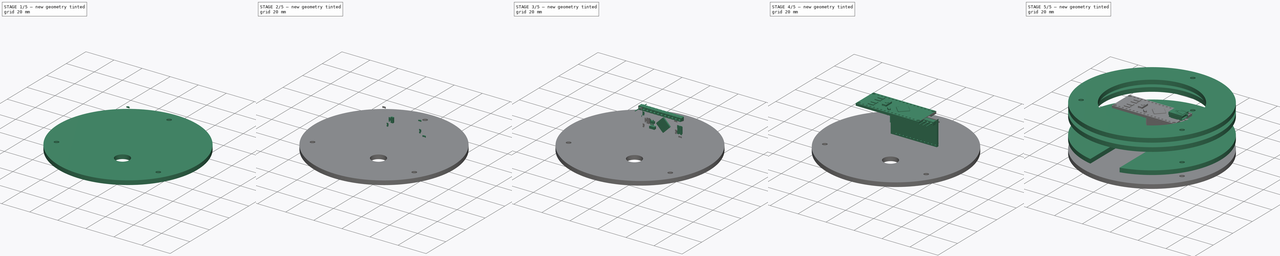
[diagram: build sequence overview — one tinted view per stage of 5, left to right]
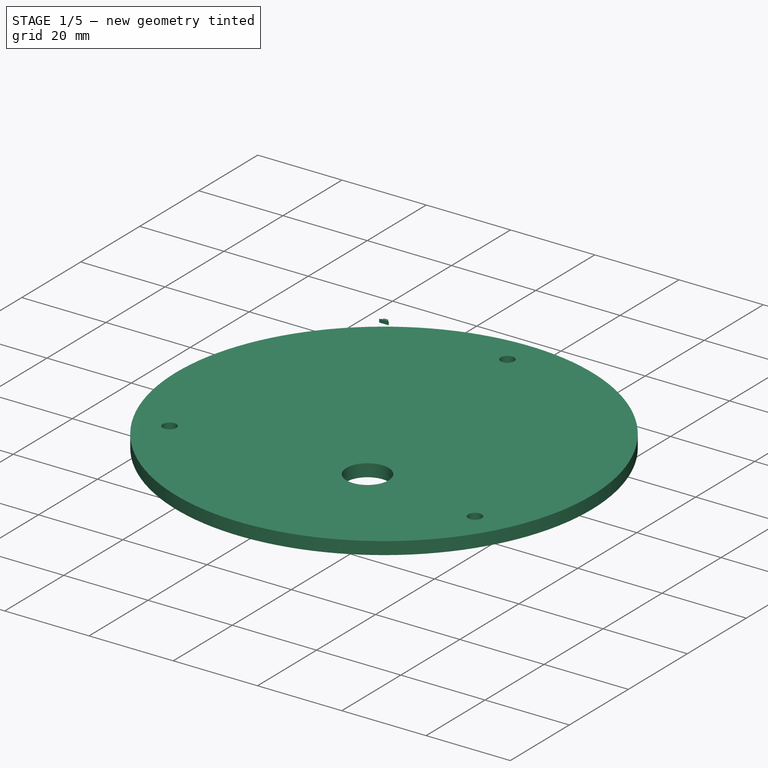
[diagram: stage 1 of 5 — iso view after this stage's code; geometry added in this stage tinted green]
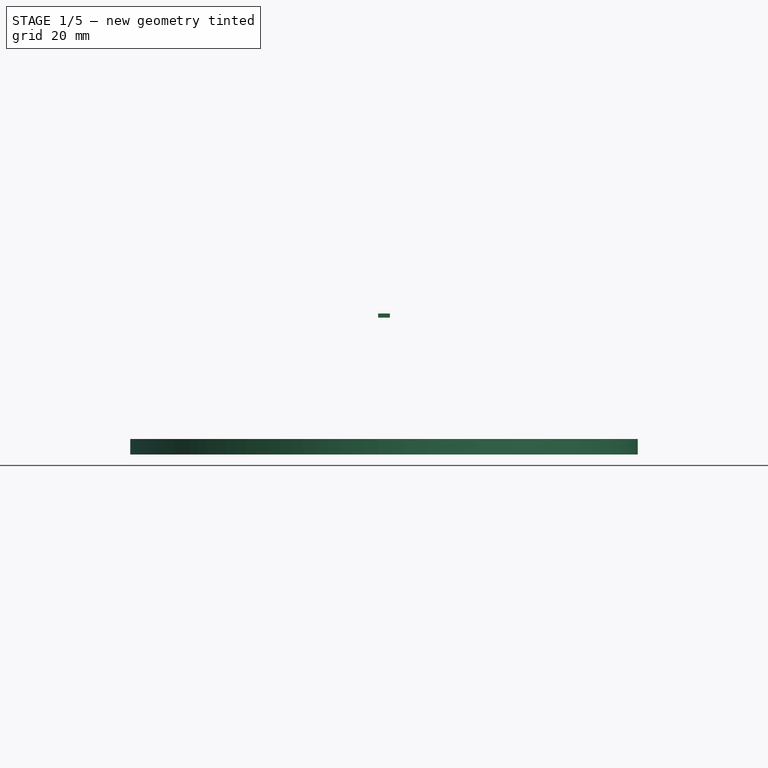
[diagram: stage 1 of 5 — front view after this stage's code; geometry added in this stage tinted green]
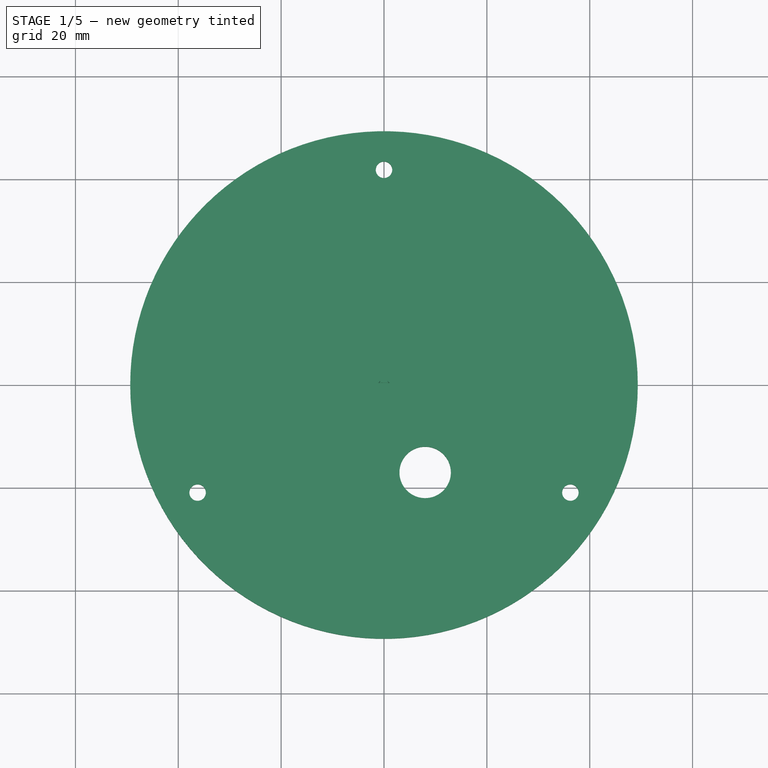
[diagram: stage 1 of 5 — top view after this stage's code; geometry added in this stage tinted green]
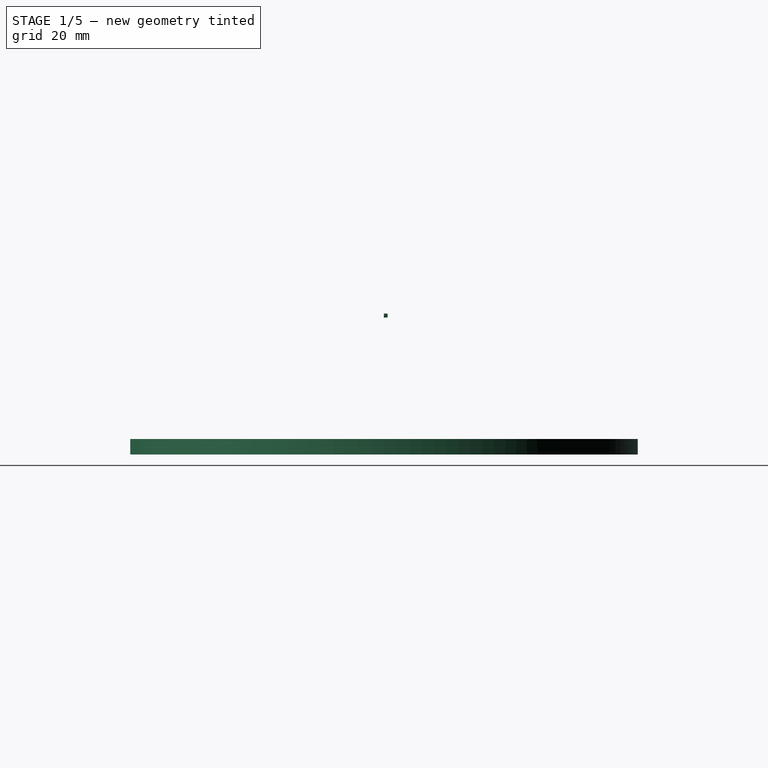
[diagram: stage 1 of 5 — right view after this stage's code; geometry added in this stage tinted green]
FCSTD DOCUMENT  (FreeCAD 0.19R)
Label: infinity_01
License: Other
LicenseURL: https://ohwr.org/project/cernohl/wikis/Documents/CERN-OHL-version-2
objects: Part::Feature×106, App::Link×70, Part::Compound2×34, PartDesign::Body×11, PartDesign::SubShapeBinder×7, Sketcher::SketchObject×6, PartDesign::Pad×6, Part::Part2DObjectPython×6, PartDesign::FeatureBase×5, App::LinkGroup×4, App::DocumentObjectGroup×2, Spreadsheet::Sheet×1
note: 153 computed .brp shape members not serialized (recipe doc carries the construction recipe); baked Part::Feature solids carry a one-line shape summary decoded from their .brp

FEATURE [Sketcher::SketchObject] Sketch
  FullyConstrained = true
  MapMode = 5
  Support = -> [XY_Plane]
  expr: Constraints[18] = Spreadsheet.length_of_LEDS / 3.14 + 5mm + 15mm
  expr: Constraints[2] = Spreadsheet.length_of_LEDS / 3.14 + 5mm + 30mm
  expr: Constraints[3] = Spreadsheet.screw_hole_dia + 0.2mm
  sketch-geometry (8):
    g0: Circle CenterX=0 CenterY=0 CenterZ=0 NormalX=0 NormalY=0 NormalZ=1 AngleXU=0 Radius=49.3471
    g1: Circle CenterX=-36.2407 CenterY=-20.9236 CenterZ=0 NormalX=0 NormalY=0 NormalZ=1 AngleXU=0 Radius=1.6
    g2: Circle CenterX=36.2407 CenterY=-20.9236 CenterZ=0 NormalX=0 NormalY=0 NormalZ=1 AngleXU=0 Radius=1.6
    g3: Circle CenterX=0 CenterY=41.8471 CenterZ=0 NormalX=0 NormalY=0 NormalZ=1 AngleXU=0 Radius=1.6
    g4: LineSegment StartX=0 StartY=0 StartZ=0 EndX=0 EndY=41.8471 EndZ=0
    g5: LineSegment StartX=0 StartY=0 StartZ=0 EndX=36.2407 EndY=-20.9236 EndZ=0
    g6: LineSegment StartX=0 StartY=0 StartZ=0 EndX=-36.2407 EndY=-20.9236 EndZ=0
    g7: Circle CenterX=0 CenterY=0 CenterZ=0 NormalX=0 NormalY=0 NormalZ=1 AngleXU=0 Radius=41.8471
  constraints (19):
    c: Coincident(g0,g-1)
    c: PointOnObject(g3,g-2)
    c: Diameter(g0) = 98.6943
    c: Diameter(g1) = 3.2
    c: Equal(g1,g3)
    c: Equal(g1,g2)
    c: Coincident(g4,g0)
    c: Coincident(g4,g3)
    c: Coincident(g5,g0)
    c: Coincident(g5,g2)
    c: Coincident(g6,g0)
    c: Coincident(g6,g1)
    c: Equal(g6,g5)
    c: Equal(g5,g4)
    c: Angle(g5,g4) = 2.0944
    c: Angle(g4,g6) = 2.0944
    c: Coincident(g7,g0)
    c: PointOnObject(g3,g7)
    c: Diameter(g7) = 83.6943
FEATURE [PartDesign::Pad] Pad
  Direction = (1,1,1)
  Length = 3
  Length2 = 100
  Profile = -> Sketch
  Type = 0
FEATURE [PartDesign::Body] Body  label="front_mirror_50%"
  Group = -> [Sketch,Pad]
  Origin = -> Origin
  Tip = -> Pad
FEATURE [PartDesign::SubShapeBinder] Binder
  BindMode = 0
  ClaimChildren = false
  Context = -> Body001 [Binder.]
  Fuse = false
  MakeFace = true
  PartialLoad = false
  Relative = true
  Support = -> [Body]
  _Version = 2
FEATURE [Sketcher::SketchObject] Sketch001
  ExternalGeometry = -> [Binder]
  FullyConstrained = true
  MapMode = 5
  Placement = pos=(0,0,0) rot=(1,0,0;3.14159rad)
  Support = -> [Binder]
  expr: Constraints[8] = Spreadsheet.length_of_LEDS / 3.14 + 5mm
  sketch-geometry (10):
    g0: Circle CenterX=0 CenterY=0 CenterZ=0 NormalX=0 NormalY=0 NormalZ=1 AngleXU=0 Radius=49.3471
    g1: Circle CenterX=-36.2407 CenterY=20.9236 CenterZ=0 NormalX=0 NormalY=0 NormalZ=1 AngleXU=0 Radius=1.6
    g2: Circle CenterX=36.2407 CenterY=20.9236 CenterZ=0 NormalX=0 NormalY=0 NormalZ=1 AngleXU=0 Radius=1.6
    g3: Circle CenterX=0 CenterY=-41.8471 CenterZ=0 NormalX=0 NormalY=0 NormalZ=1 AngleXU=0 Radius=1.6
    g4: ArcOfCircle CenterX=0 CenterY=0 CenterZ=0 NormalX=0 NormalY=0 NormalZ=1 AngleXU=0 Radius=34.3471 StartAngle=1.65825 EndAngle=7.76653
    g5: LineSegment StartX=-3 StartY=41.8471 StartZ=0 EndX=3 EndY=41.8471 EndZ=0
    g6: LineSegment StartX=3 StartY=41.8471 StartZ=0 EndX=3 EndY=34.2159 EndZ=0
    g7: LineSegment StartX=-3 StartY=34.2159 StartZ=0 EndX=-3 EndY=41.8471 EndZ=0
    g8: LineSegment StartX=0 StartY=0 StartZ=0 EndX=-36.2407 EndY=20.9236 EndZ=0
    g9: LineSegment StartX=0 StartY=0 StartZ=0 EndX=0 EndY=41.8471 EndZ=0
  constraints (24):
    c: Coincident(g0,g-1)
    c: Coincident(g1,g-4)
    c: Coincident(g2,g-5)
    c: Coincident(g3,g-6)
    c: Equal(g3,g-6)
    c: Equal(g-4,g1)
    c: Equal(g-5,g2)
    c: Coincident(g4,g0)
    c: Diameter(g4) = 68.6943
    c: Coincident(g5,g6)
    c: Coincident(g7,g5)
    c: Vertical(g6)
    c: Vertical(g7)
    c: Symmetric(g5,g5,g-2)
    c: DistanceX(g5,g5) = 6
    c: Coincident(g4,g7)
    c: Coincident(g4,g6)
    c: Equal(g0,g-3)
    c: Coincident(g8,g0)
    c: Coincident(g8,g1)
    c: Coincident(g9,g0)
    c: PointOnObject(g9,g5)
    c: Vertical(g9)
    c: Equal(g8,g9)
FEATURE [PartDesign::Pad] Pad001
  Direction = (1,1,1)
  Length = 3
  Length2 = 100
  Profile = -> Sketch001
  Type = 0
FEATURE [PartDesign::Body] Body003  label="spacer02"
  BaseFeature = -> Body001
  Group = -> [Clone]
  Origin = -> Origin003
  Placement = pos=(0,0,-3) rot=(0,0,1;0rad)
  Tip = -> Clone
FEATURE [PartDesign::FeatureBase] Clone001
  BaseFeature = -> Body001
FEATURE [PartDesign::Body] Body004  label="spacer03"
  BaseFeature = -> Body001
  Group = -> [Clone001]
  Origin = -> Origin004
  Placement = pos=(0,0,-6) rot=(0,0,1;0rad)
  Tip = -> Clone001
FEATURE [PartDesign::SubShapeBinder] Binder004
  BindMode = 0
  ClaimChildren = false
  Context = -> Body006 [Binder004.]
  Fuse = false
  MakeFace = true
  PartialLoad = false
  Relative = true
  Support = -> [Body005]
  _Version = 2
FEATURE [Sketcher::SketchObject] Sketch004
  ExternalGeometry = -> [Binder004]
  FullyConstrained = true
  MapMode = 5
  Placement = pos=(0,0,-15) rot=(1,0,0;3.14159rad)
  Support = -> [Binder004]
  expr: Constraints[6] = Spreadsheet.width
  expr: Constraints[9] = Spreadsheet.Length
  sketch-geometry (7):
    g0: ArcOfCircle CenterX=0 CenterY=0 CenterZ=0 NormalX=0 NormalY=0 NormalZ=1 AngleXU=0 Radius=49.3471 StartAngle=1.78521 EndAngle=7.63956
    g1: LineSegment StartX=10.5 StartY=48.2171 StartZ=0 EndX=10.5 EndY=1.21711 EndZ=0
    g2: LineSegment StartX=10.5 StartY=1.21711 StartZ=0 EndX=-10.5 EndY=1.21711 EndZ=0
    g3: LineSegment StartX=-10.5 StartY=1.21711 StartZ=0 EndX=-10.5 EndY=48.2171 EndZ=0
    g4: Circle CenterX=-36.2407 CenterY=20.9236 CenterZ=0 NormalX=0 NormalY=0 NormalZ=1 AngleXU=0 Radius=1.6
    g5: Circle CenterX=36.2407 CenterY=20.9236 CenterZ=0 NormalX=0 NormalY=0 NormalZ=1 AngleXU=0 Radius=1.6
    g6: Circle CenterX=0 CenterY=-41.8471 CenterZ=0 NormalX=0 NormalY=0 NormalZ=1 AngleXU=0 Radius=1.6
  constraints (17):
    c: Coincident(g0,g-1)
    c: Coincident(g1,g2)
    c: Coincident(g2,g3)
    c: Vertical(g1)
    c: Vertical(g3)
    c: Symmetric(g2,g1,g-2)
    c: DistanceX(g2,g2) = 21
    c: Coincident(g0,g3)
    c: Coincident(g0,g1)
    c: Distance(g3) = 47
    c: Equal(g0,g-3)
    c: Coincident(g4,g-4)
    c: Coincident(g5,g-5)
    c: Coincident(g6,g-6)
    c: Equal(g6,g-6)
    c: Equal(g-4,g4)
    c: Equal(g-5,g5)
FEATURE [PartDesign::Pad] Pad004
  Direction = (1,1,1)
  Length = 3
  Length2 = 100
  Profile = -> Sketch004
  Type = 0
FEATURE [Part::Feature] Solid103
  shape: bbox 1.1 x 0.5 x 0.75 mm, 6 faces (baked)
FEATURE [Part::Feature] Solid104
  shape: bbox 2.48 x 0.32 x 0.8557 mm, 75 faces (baked)
FEATURE [Part::Compound2] Compound032  label="MICRO_led"
  Links = -> [Solid103,Solid104]
FEATURE [PartDesign::Body] Body007  label="arduino_micro_back002"
  BaseFeature = -> Body006
  Group = -> [Clone002]
  Origin = -> Origin007
  Placement = pos=(0,0,-3) rot=(0,0,1;0rad)
  Tip = -> Clone002
FEATURE [PartDesign::FeatureBase] Clone004
  BaseFeature = -> Body004
  Placement = pos=(0,0,-6) rot=(0,0,1;0rad)
FEATURE [PartDesign::Body] Body009  label="spacer04"
  BaseFeature = -> Body004
  Group = -> [Clone004]
  Origin = -> Origin009
  Placement = pos=(0,0,-3) rot=(0,0,1;0rad)
  Tip = -> Clone004
FEATURE [PartDesign::FeatureBase] Clone005
  BaseFeature = -> Body006
FEATURE [PartDesign::Body] Body010  label="arduino_micro_back003"
  BaseFeature = -> Body006
  Group = -> [Clone005]
  Origin = -> Origin010
  Placement = pos=(0,0,-6) rot=(0,0,1;0rad)
  Tip = -> Clone005
FEATURE [Part::Feature] Solid105  label="b3f-6000"
  Placement = pos=(8,-17,-20) rot=(0.57735,-0.57735,0.57735;4.18879rad)
  shape: bbox 6.2 x 6 x 18.3 mm, 60 faces (baked)
FEATURE [App::DocumentObjectGroup] Group001  label="Arduino_models"
  Group = -> [LinkGroup,LinkGroup003,Solid105]
FEATURE [PartDesign::SubShapeBinder] Binder005
  BindMode = 0
  ClaimChildren = false
  Context = -> Body011 [Binder005.]
  Fuse = false
  MakeFace = true
  PartialLoad = false
  Relative = true
  Support = -> [Body010]
  _Version = 2
FEATURE [PartDesign::SubShapeBinder] Binder006
  BindMode = 0
  ClaimChildren = false
  Context = -> Body011 [Binder006.]
  Fuse = false
  MakeFace = true
  PartialLoad = false
  Relative = true
  Support = -> [Solid105]
  _Version = 2
FEATURE [Sketcher::SketchObject] Sketch005
  ExternalGeometry = -> [Binder005,Binder006]
  FullyConstrained = true
  MapMode = 5
  Placement = pos=(0,0,-24) rot=(1,0,0;3.14159rad)
  Support = -> [Binder005]
  sketch-geometry (5):
    g0: Circle CenterX=0 CenterY=0 CenterZ=0 NormalX=0 NormalY=0 NormalZ=1 AngleXU=0 Radius=49.3471
    g1: Circle CenterX=-36.2407 CenterY=20.9236 CenterZ=0 NormalX=0 NormalY=0 NormalZ=1 AngleXU=0 Radius=1.6
    g2: Circle CenterX=36.2407 CenterY=20.9236 CenterZ=0 NormalX=0 NormalY=0 NormalZ=1 AngleXU=0 Radius=1.6
    g3: Circle CenterX=0 CenterY=-41.8471 CenterZ=0 NormalX=0 NormalY=0 NormalZ=1 AngleXU=0 Radius=1.6
    g4: Circle CenterX=8 CenterY=17 CenterZ=0 NormalX=0 NormalY=0 NormalZ=1 AngleXU=0 Radius=5
  constraints (10):
    c: Coincident(g0,g-1)
    c: Coincident(g2,g-5)
    c: Coincident(g3,g-6)
    c: Equal(g-6,g3)
    c: Equal(g1,g-4)
    c: Coincident(g1,g-4)
    c: Equal(g-5,g2)
    c: Equal(g0,g-3)
    c: Coincident(g-7,g4)
    c: Diameter(g4) = 10
FEATURE [PartDesign::Pad] Pad005
  Direction = (1,1,1)
  Length = 3
  Length2 = 100
  Profile = -> Sketch005
  Type = 0
FEATURE [PartDesign::Body] Body011  label="back"
  Group = -> [Binder005,Sketch005,Binder006,Pad005]
  Origin = -> Origin011
  Tip = -> Pad005
FEATURE [Part::Part2DObjectPython] Shape2DView005  label="back001"  # Draft 2D object (typed FeaturePython)
  Base = -> Body011
  FuseArch = false
  HiddenLines = false
  InPlace = true
  Projection = (0,0,1)
  ProjectionMode = 0
  SegmentLength = 0.05
  Tessellation = false
  VisibleOnly = false
FEATURE [PartDesign::SubShapeBinder] Binder007
  BindMode = 0
  ClaimChildren = false
  Context = -> Body005 [Binder007.]
  Fuse = false
  MakeFace = true
  PartialLoad = false
  Relative = true
  Support = -> [Body009]
  _Version = 2
FEATURE [Sketcher::SketchObject] Sketch003
  ExternalGeometry = -> [Binder007]
  FullyConstrained = true
  MapMode = 5
  Placement = pos=(0,0,-6) rot=(1,0,0;3.14159rad)
  Support = -> [Binder007]
  sketch-geometry (8):
    g0: Circle CenterX=0 CenterY=0 CenterZ=0 NormalX=0 NormalY=0 NormalZ=1 AngleXU=0 Radius=49.3471
    g1: Circle CenterX=-36.2407 CenterY=20.9236 CenterZ=0 NormalX=0 NormalY=0 NormalZ=1 AngleXU=0 Radius=1.6
    g2: Circle CenterX=36.2407 CenterY=20.9236 CenterZ=0 NormalX=0 NormalY=0 NormalZ=1 AngleXU=0 Radius=1.6
    g3: Circle CenterX=0 CenterY=-41.8471 CenterZ=0 NormalX=0 NormalY=0 NormalZ=1 AngleXU=0 Radius=1.6
    g4: LineSegment StartX=3 StartY=34.2159 StartZ=0 EndX=-3 EndY=34.2159 EndZ=0
    g5: LineSegment StartX=-3 StartY=34.2159 StartZ=0 EndX=-3 EndY=41.8471 EndZ=0
    g6: LineSegment StartX=-3 StartY=41.8471 StartZ=0 EndX=3 EndY=41.8471 EndZ=0
    g7: LineSegment StartX=3 StartY=41.8471 StartZ=0 EndX=3 EndY=34.2159 EndZ=0
  constraints (18):
    c: Coincident(g0,g-1)
    c: Coincident(g4,g5)
    c: Coincident(g5,g6)
    c: Coincident(g6,g7)
    c: Coincident(g7,g4)
    c: Horizontal(g4)
    c: Horizontal(g6)
    c: Vertical(g5)
    c: Vertical(g7)
    c: Equal(g-3,g0)
    c: Equal(g-4,g1)
    c: Coincident(g1,g-4)
    c: Coincident(g2,g-5)
    c: Equal(g-5,g2)
    c: Coincident(g3,g-6)
    c: Equal(g-6,g3)
    c: Coincident(g5,g-7)
    c: Coincident(g4,g-8)
FEATURE [PartDesign::Pad] Pad003
  Direction = (1,1,1)
  Length = 3
  Length2 = 100
  Profile = -> Sketch003
  Type = 0
FEATURE [PartDesign::Body] Body005  label="back_mirror_100%"
  Group = -> [Sketch003,Pad003,Binder007]
  Origin = -> Origin005
  Placement = pos=(0,0,-6) rot=(0,0,1;0rad)
  Tip = -> Pad003
FEATURE [Part::Part2DObjectPython] Shape2DView003  label="back_mirror001"  # Draft 2D object (typed FeaturePython)
  Base = -> Body005
  FuseArch = false
  HiddenLines = false
  InPlace = true
  Projection = (0,8.74228e-08,-1)
  ProjectionMode = 0
  SegmentLength = 0.05
  Tessellation = false
  VisibleOnly = false
FEATURE [App::DocumentObjectGroup] Group  label="DXF"
  Group = -> [Shape2DView,Shape2DView001,Shape2DView002,Shape2DView003,Shape2DView004,Shape2DView005]
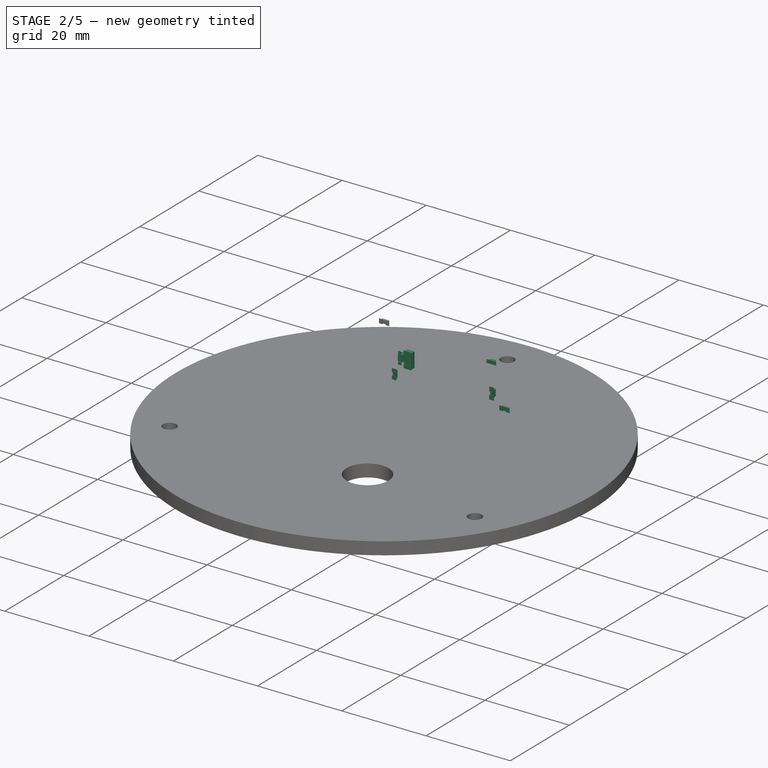
[diagram: stage 2 of 5 — iso view after this stage's code; geometry added in this stage tinted green]
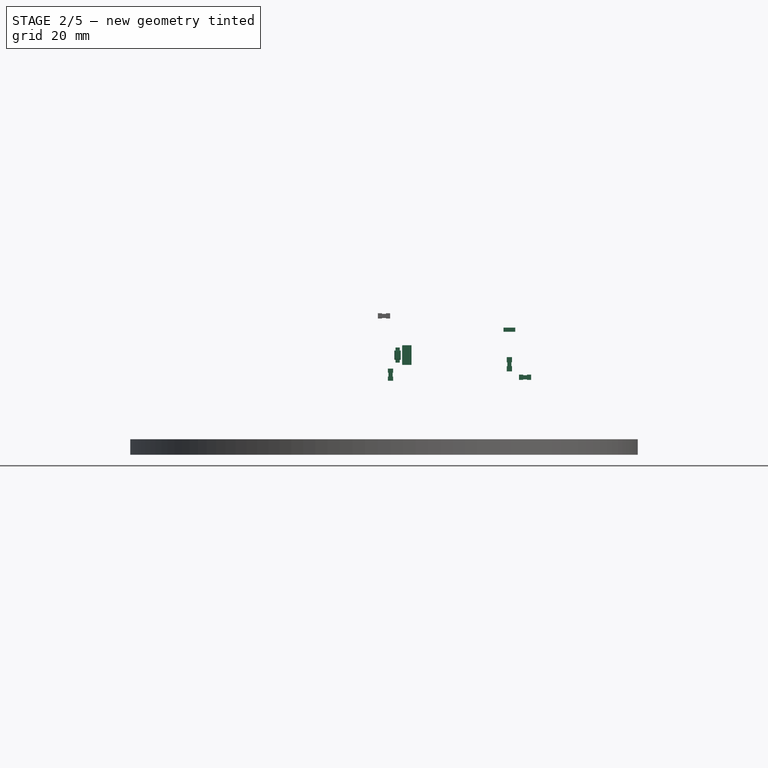
[diagram: stage 2 of 5 — front view after this stage's code; geometry added in this stage tinted green]
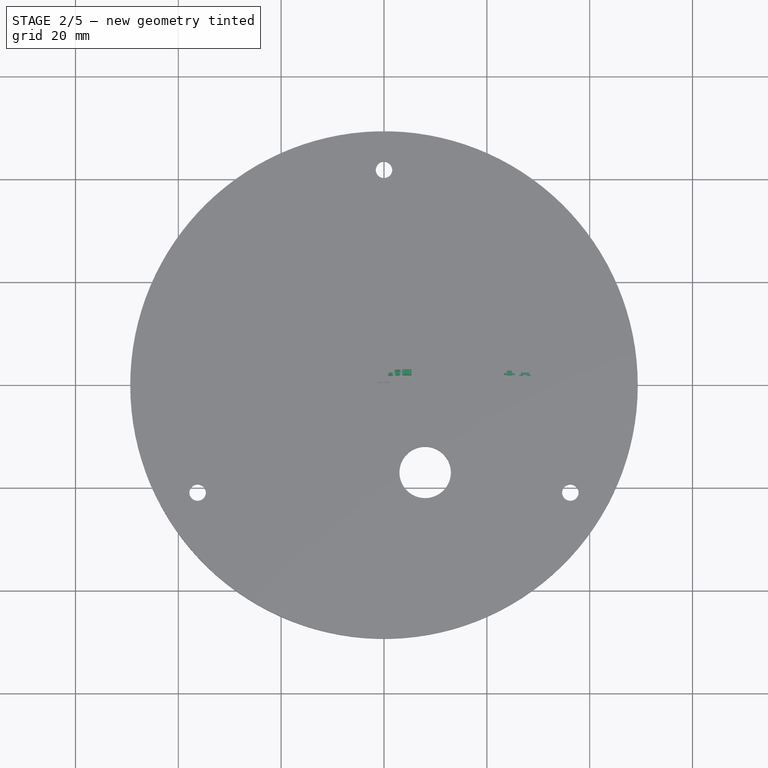
[diagram: stage 2 of 5 — top view after this stage's code; geometry added in this stage tinted green]
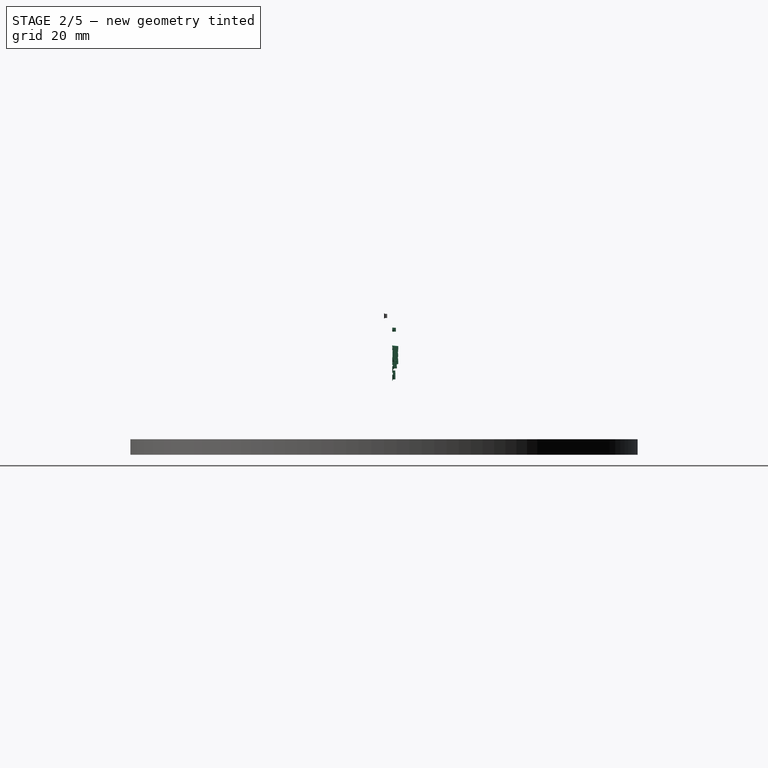
[diagram: stage 2 of 5 — right view after this stage's code; geometry added in this stage tinted green]
FEATURE [Part::Feature] Solid088
  shape: bbox 1.55 x 0.45 x 0.8 mm, 6 faces (baked)
FEATURE [Part::Feature] Solid089
  shape: bbox 1 x 0.04 x 0.8 mm, 79 faces (baked)
FEATURE [Part::Feature] Solid090
  shape: bbox 0.8 x 0.6 x 1.02 mm, 23 faces (baked)
FEATURE [Part::Feature] Solid091
  shape: bbox 0.8 x 0.6 x 1.02 mm, 23 faces (baked)
FEATURE [Part::Compound2] Compound023  label="MICRO_603 resistor 102"
  Links = -> [Solid088,Solid089,Solid090,Solid091]
FEATURE [Part::Feature] Solid092
  shape: bbox 1.55 x 0.45 x 0.8 mm, 6 faces (baked)
FEATURE [Part::Feature] Solid093
  shape: bbox 1 x 0.04 x 0.8 mm, 92 faces (baked)
FEATURE [Part::Feature] Solid094
  shape: bbox 0.8 x 0.6 x 1.02 mm, 23 faces (baked)
FEATURE [Part::Feature] Solid095
  shape: bbox 0.8 x 0.6 x 1.02 mm, 23 faces (baked)
FEATURE [Part::Compound2] Compound025  label="MICRO_603 resistor 22"
  Links = -> [Solid092,Solid093,Solid094,Solid095]
FEATURE [Part::Compound2] Compound026  label="NAUO12"
  Links = -> [Compound025]
  Placement = pos=(1.27,1.6,-11.43) rot=(0,-1,0;1.5708rad)
FEATURE [App::Link] Link060  label="NAUO13"
  LinkPlacement = pos=(2.667,1.6,-11.43) rot=(0,-1,0;1.5708rad)
  LinkedObject = -> Compound025
  Placement = pos=(2.667,1.6,-11.43) rot=(0,-1,0;1.5708rad)
FEATURE [Part::Feature] Solid096  label="MICRO_PTC-1206"
  shape: bbox 3.85 x 1.171 x 1.821 mm, 118 faces (baked)
FEATURE [Part::Compound2] Compound027  label="NAUO14"
  Links = -> [Solid096]
  Placement = pos=(4.445,1.6,-7.62) rot=(0,-1,0;1.5708rad)
FEATURE [Part::Feature] Solid097
  shape: bbox 1.55 x 0.45 x 0.8 mm, 6 faces (baked)
FEATURE [Part::Feature] Solid098
  shape: bbox 1 x 0.04 x 0.8 mm, 106 faces (baked)
FEATURE [Part::Feature] Solid099
  shape: bbox 0.8 x 0.6 x 1.02 mm, 23 faces (baked)
FEATURE [Part::Feature] Solid100
  shape: bbox 0.8 x 0.6 x 1.02 mm, 23 faces (baked)
FEATURE [Part::Compound2] Compound028  label="MICRO_603 resistor 331"
  Links = -> [Solid097,Solid098,Solid099,Solid100]
FEATURE [Part::Compound2] Compound029  label="NAUO15"
  Links = -> [Compound028]
  Placement = pos=(27.432,1.6,-11.938) rot=(0,0,1;0rad)
FEATURE [App::Link] Link061  label="NAUO16"
  LinkPlacement = pos=(27.432,1.6,-3.302) rot=(0,0,1;0rad)
  LinkedObject = -> Compound028
  Placement = pos=(27.432,1.6,-3.302) rot=(0,0,1;0rad)
FEATURE [Part::Feature] Solid101  label="MICRO_603 cap on pad"
  shape: bbox 3.329 x 0.955 x 1.226 mm, 56 faces (baked)
FEATURE [Part::Compound2] Compound030  label="NAUO17"
  Links = -> [Solid101]
  Placement = pos=(24.384,1.6,-9.398) rot=(0,-1,0;1.5708rad)
FEATURE [App::Link] Link062  label="NAUO18"
  LinkPlacement = pos=(21.336,1.6,-11.938) rot=(0,0,1;0rad)
  LinkedObject = -> Solid101
  Placement = pos=(21.336,1.6,-11.938) rot=(0,0,1;0rad)
FEATURE [App::Link] Link063  label="NAUO19"
  LinkPlacement = pos=(24.384,1.6,-5.715) rot=(0,-1,0;1.5708rad)
  LinkedObject = -> Solid101
  Placement = pos=(24.384,1.6,-5.715) rot=(0,-1,0;1.5708rad)
FEATURE [App::Link] Link064  label="NAUO20"
  LinkPlacement = pos=(21.336,1.6,-3.1877) rot=(0,0,1;0rad)
  LinkedObject = -> Solid101
  Placement = pos=(21.336,1.6,-3.1877) rot=(0,0,1;0rad)
FEATURE [App::Link] Link065  label="NAUO21"
  LinkPlacement = pos=(11.0744,1.6,-3.5839) rot=(0,1,0;1.5708rad)
  LinkedObject = -> Solid101
  Placement = pos=(11.0744,1.6,-3.5839) rot=(0,1,0;1.5708rad)
FEATURE [App::Link] Link066  label="NAUO22"
  LinkPlacement = pos=(10.6528,1.6,-11.4681) rot=(0,-1,0;1.5708rad)
  LinkedObject = -> Solid101
  Placement = pos=(10.6528,1.6,-11.4681) rot=(0,-1,0;1.5708rad)
FEATURE [App::Link] Link067  label="NAUO23"
  LinkPlacement = pos=(4.1758,1.6,-11.43) rot=(0,1,0;1.5708rad)
  LinkedObject = -> Solid101
  Placement = pos=(4.1758,1.6,-11.43) rot=(0,1,0;1.5708rad)
FEATURE [Part::Feature] Solid102  label="SOD 323"
  shape: bbox 2.93 x 1.105 x 1.25 mm, 59 faces (baked)
FEATURE [Part::Compound2] Compound031  label="NAUO24"
  Links = -> [Solid102]
  Placement = pos=(2.6416,1.6,-7.62) rot=(0,-1,0;1.5708rad)
FEATURE [Part::Compound2] Compound033  label="NAUO25"
  Links = -> [Compound032]
  Placement = pos=(24.384,1.62,-2.6907) rot=(0,0,1;0rad)
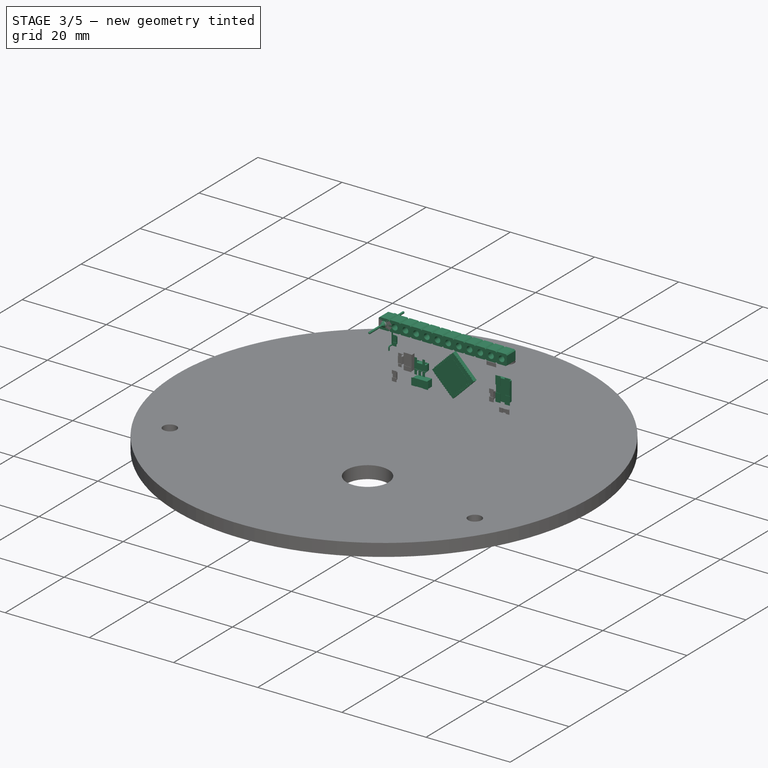
[diagram: stage 3 of 5 — iso view after this stage's code; geometry added in this stage tinted green]
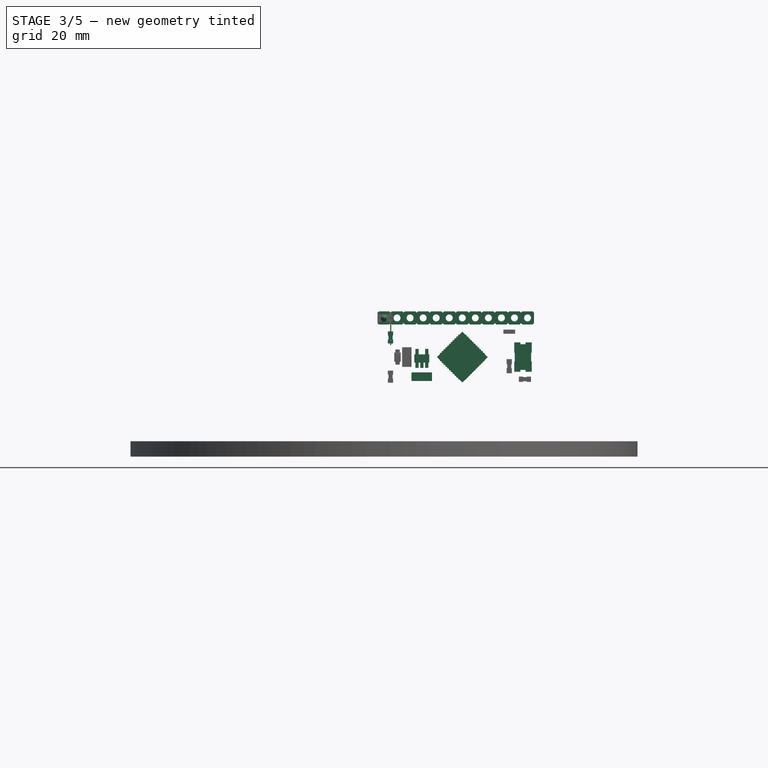
[diagram: stage 3 of 5 — front view after this stage's code; geometry added in this stage tinted green]
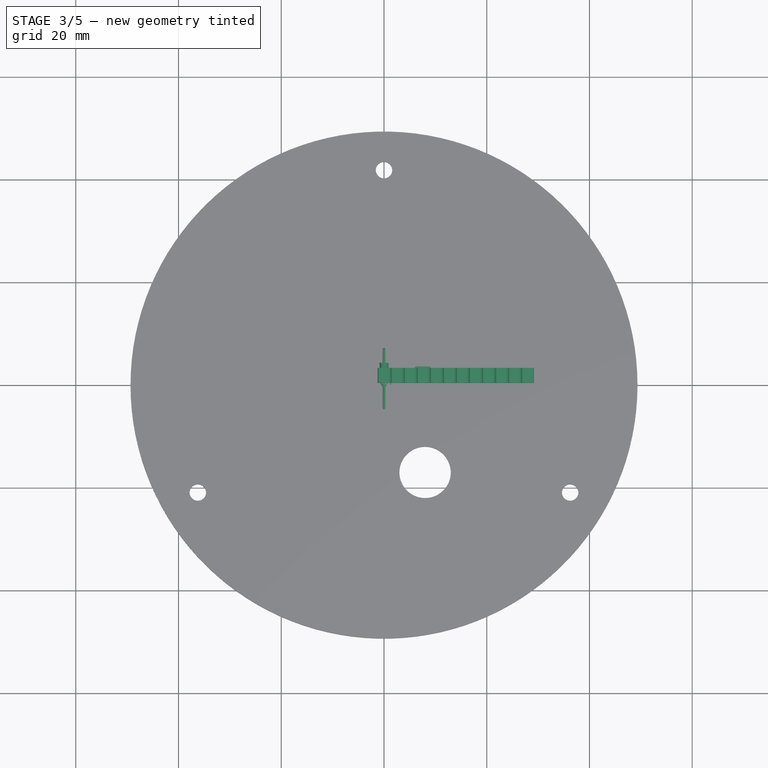
[diagram: stage 3 of 5 — top view after this stage's code; geometry added in this stage tinted green]
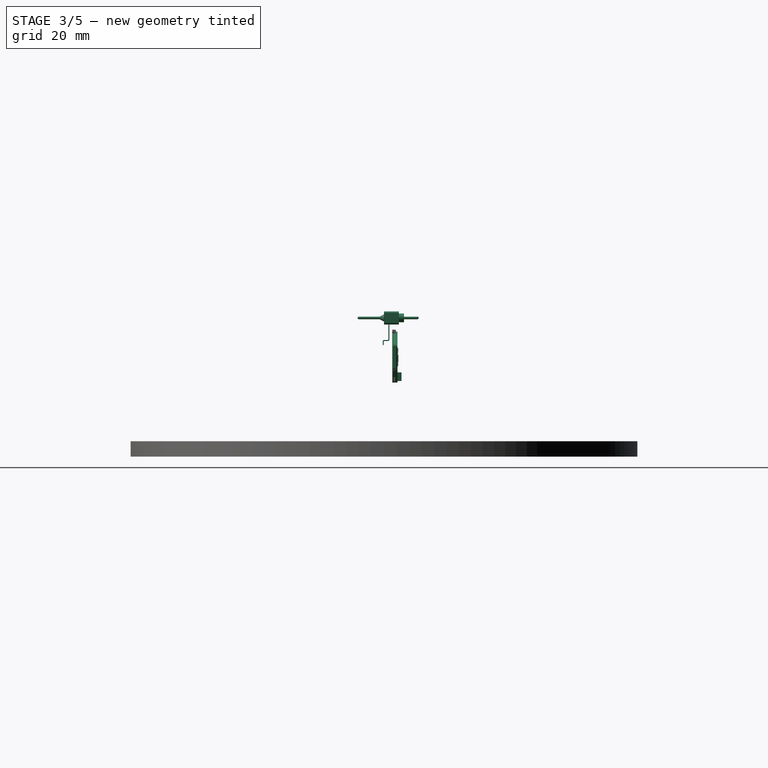
[diagram: stage 3 of 5 — right view after this stage's code; geometry added in this stage tinted green]
FEATURE [Part::Feature] Solid075  label="MICRO_stackable header 12"
  shape: bbox 30.48 x 2.9 x 2.54 mm, 100 faces (baked)
FEATURE [Part::Compound2] Compound010  label="NAUO35"
  Links = -> [Solid075]
FEATURE [Part::Feature] Solid076  label="MICRO_stackable header pin"
  shape: bbox 1.7 x 11.9 x 1.7 mm, 16 faces (baked)
FEATURE [Part::Compound2] Compound011  label="NAUO36"
  Links = -> [Solid076]
  Placement = pos=(0,3.9,0) rot=(0,-1,0;0.00266rad)
FEATURE [Part::Feature] Solid079  label="micro usb contact"
  shape: bbox 0.2 x 1.3 x 4.4 mm, 16 faces (baked)
FEATURE [Part::Compound2] Compound015  label="NAUO30"
  Links = -> [Solid079]
  Placement = pos=(1.3,-0.25,-0.1) rot=(0,0,1;0rad)
FEATURE [Part::Feature] Solid080  label="atmega32U4"
  shape: bbox 7.23 x 1.02 x 7.23 mm, 1164 faces (baked)
FEATURE [Part::Compound2] Compound017  label="NAUO4"
  Links = -> [Solid080]
  Placement = pos=(15.24,1.62,-7.62) rot=(0,1,0;3.92699rad)
FEATURE [Part::Feature] Solid081  label="MICRO_cap106C"
  shape: bbox 1.701 x 1.811 x 4.001 mm, 124 faces (baked)
FEATURE [Part::Compound2] Compound018  label="NAUO5"
  Links = -> [Solid081]
  Placement = pos=(7.3558,1.6,-11.4427) rot=(0,1,0;1.5708rad)
FEATURE [App::Link] Link058  label="NAUO6"
  LinkPlacement = pos=(7.3558,1.6,-3.7973) rot=(0,1,0;1.5708rad)
  LinkedObject = -> Solid081
  Placement = pos=(7.3558,1.6,-3.7973) rot=(0,1,0;1.5708rad)
FEATURE [App::Link] Link059  label="NAUO7"
  LinkPlacement = pos=(0,-3.9,-15.24) rot=(0,0,1;0rad)
  LinkedObject = -> LinkGroup001
  Placement = pos=(0,-3.9,-15.24) rot=(0,0,1;0rad)
FEATURE [Part::Feature] Solid082  label="micro_crystal 5x3"
  shape: bbox 5.7 x 1 x 3.4 mm, 43 faces (baked)
FEATURE [Part::Compound2] Compound019  label="NAUO8"
  Links = -> [Solid082]
  Placement = pos=(27.051,1.65,-7.62) rot=(0,1,0;1.5708rad)
FEATURE [Part::Feature] Solid083  label="micro_MIC5219"
  shape: bbox 2.9 x 1.2 x 3.683 mm, 123 faces (baked)
FEATURE [Part::Compound2] Compound020  label="NAUO9"
  Links = -> [Solid083]
  Placement = pos=(7.366,1.6,-7.874) rot=(0,1,0;3.14159rad)
FEATURE [Part::Feature] Solid084
  shape: bbox 1.55 x 0.45 x 0.8 mm, 6 faces (baked)
FEATURE [Part::Feature] Solid085
  shape: bbox 1 x 0.04 x 0.8 mm, 89 faces (baked)
FEATURE [Part::Feature] Solid086
  shape: bbox 0.8 x 0.6 x 1.02 mm, 23 faces (baked)
FEATURE [Part::Feature] Solid087
  shape: bbox 0.8 x 0.6 x 1.02 mm, 23 faces (baked)
FEATURE [Part::Compound2] Compound021  label="MICRO_603 resistor 103"
  Links = -> [Solid084,Solid085,Solid086,Solid087]
FEATURE [Part::Compound2] Compound022  label="NAUO10"
  Links = -> [Compound021]
  Placement = pos=(1.27,1.6,-3.81) rot=(0,-1,0;1.5708rad)
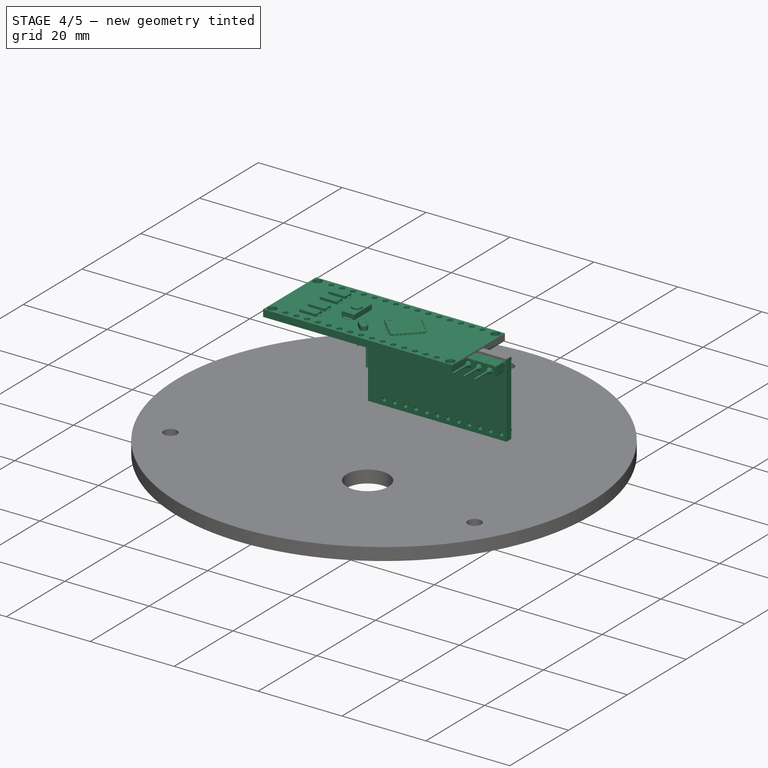
[diagram: stage 4 of 5 — iso view after this stage's code; geometry added in this stage tinted green]
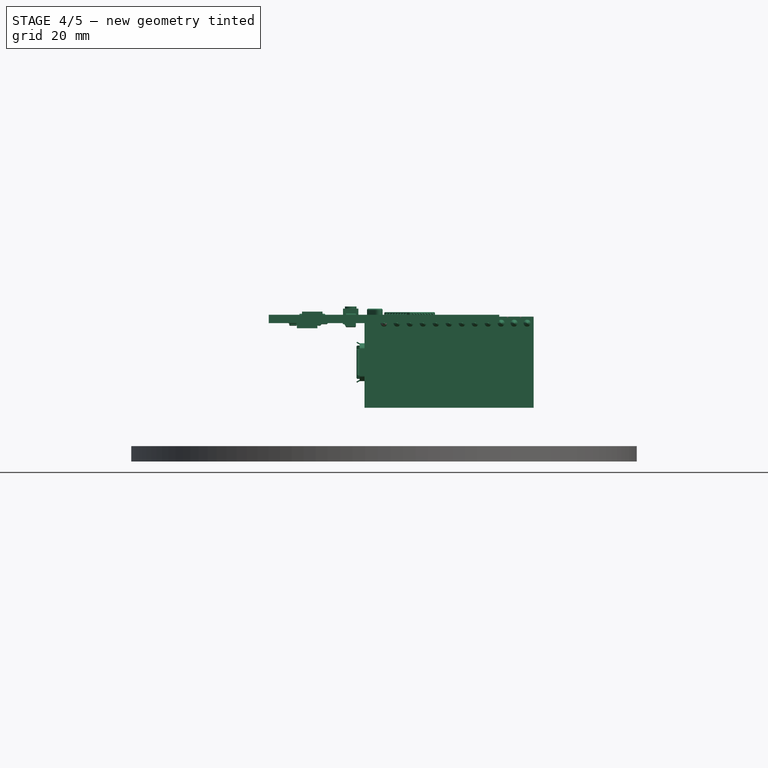
[diagram: stage 4 of 5 — front view after this stage's code; geometry added in this stage tinted green]
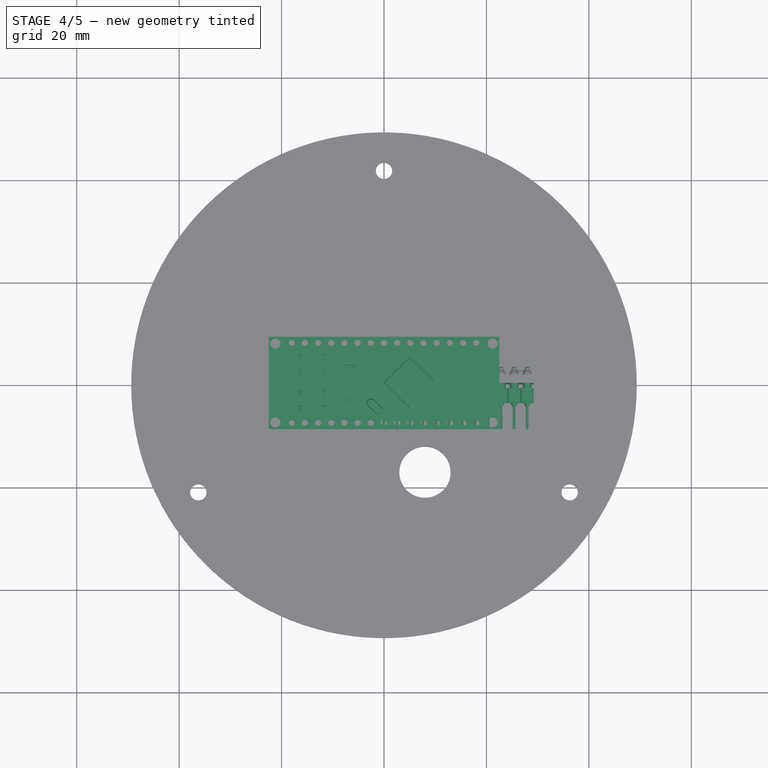
[diagram: stage 4 of 5 — top view after this stage's code; geometry added in this stage tinted green]
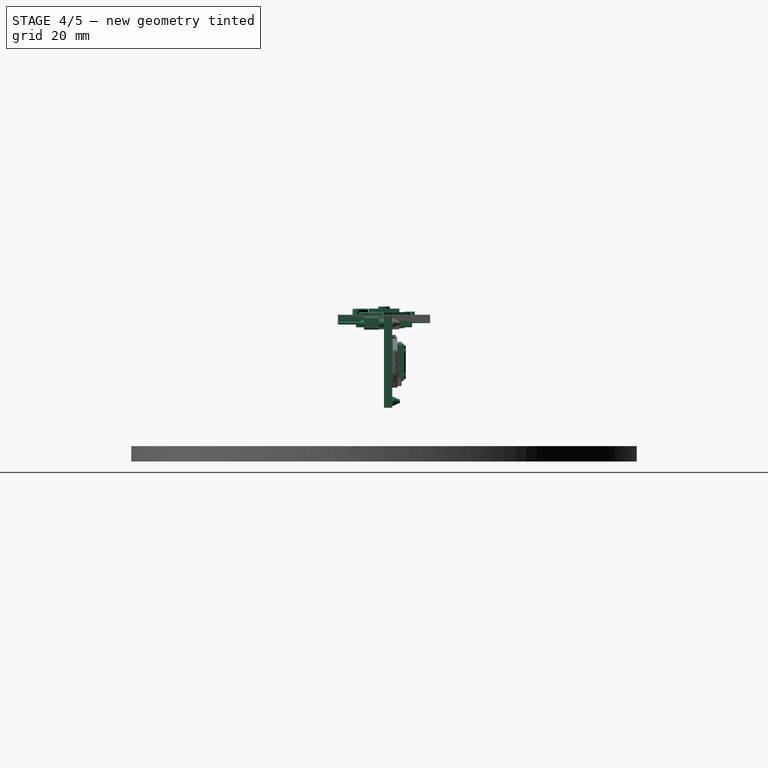
[diagram: stage 4 of 5 — right view after this stage's code; geometry added in this stage tinted green]
FEATURE [App::Link] Link033  label="Component5(Mirror):2"
  LinkPlacement = pos=(0,1.52,0) rot=(1,0,0;3.14159rad)
  LinkedObject = -> Solid005
  Placement = pos=(0,1.52,0) rot=(1,0,0;3.14159rad)
FEATURE [App::Link] Link034  label="Component5(Mirror):3"
  LinkPlacement = pos=(0,2.28,0) rot=(1,0,0;3.14159rad)
  LinkedObject = -> Solid005
  Placement = pos=(0,2.28,0) rot=(1,0,0;3.14159rad)
FEATURE [App::Link] Link035  label="Component5(Mirror):4"
  LinkPlacement = pos=(0,3.04,0) rot=(1,0,0;3.14159rad)
  LinkedObject = -> Solid005
  Placement = pos=(0,3.04,0) rot=(1,0,0;3.14159rad)
FEATURE [App::Link] Link036  label="Component5:7"
  LinkPlacement = pos=(-12.8479,10.04,0) rot=(0,0,1;3.14159rad)
  LinkedObject = -> Solid004
  Placement = pos=(-12.8479,10.04,0) rot=(0,0,1;3.14159rad)
FEATURE [App::Link] Link037  label="Component5:8"
  LinkPlacement = pos=(-12.8479,9.28,0) rot=(0,0,1;3.14159rad)
  LinkedObject = -> Solid004
  Placement = pos=(-12.8479,9.28,0) rot=(0,0,1;3.14159rad)
FEATURE [App::Link] Link038  label="Component5:9"
  LinkPlacement = pos=(-12.8479,8.52,0) rot=(0,0,1;3.14159rad)
  LinkedObject = -> Solid004
  Placement = pos=(-12.8479,8.52,0) rot=(0,0,1;3.14159rad)
FEATURE [App::Link] Link039  label="Component5:10"
  LinkPlacement = pos=(-12.8479,7.76,0) rot=(0,0,1;3.14159rad)
  LinkedObject = -> Solid004
  Placement = pos=(-12.8479,7.76,0) rot=(0,0,1;3.14159rad)
FEATURE [Part::Feature] Solid006  label="Component5(Mirror) (1)"
  shape: bbox 0.7 x 0.2 x 0.5 mm, 10 faces (baked)
FEATURE [Part::Compound2] Compound006  label="Component5(Mirror) (1):1"
  Links = -> [Solid006]
  Placement = pos=(-12.8479,-10.04,0) rot=(0,1,0;3.14159rad)
FEATURE [App::Link] Link040  label="Component5(Mirror) (1):2"
  LinkPlacement = pos=(-12.8479,-9.28,0) rot=(0,1,0;3.14159rad)
  LinkedObject = -> Solid006
  Placement = pos=(-12.8479,-9.28,0) rot=(0,1,0;3.14159rad)
FEATURE [App::Link] Link041  label="Component5(Mirror) (1):3"
  LinkPlacement = pos=(-12.8479,-8.52,0) rot=(0,1,0;3.14159rad)
  LinkedObject = -> Solid006
  Placement = pos=(-12.8479,-8.52,0) rot=(0,1,0;3.14159rad)
FEATURE [App::Link] Link042  label="Component5(Mirror) (1):4"
  LinkPlacement = pos=(-12.8479,-7.76,0) rot=(0,1,0;3.14159rad)
  LinkedObject = -> Solid006
  Placement = pos=(-12.8479,-7.76,0) rot=(0,1,0;3.14159rad)
FEATURE [Part::Feature] Solid007  label="Component8"
  shape: bbox 4 x 6 x 1 mm, 8 faces (baked)
FEATURE [Part::Compound2] Compound007  label="Component8:1"
  Links = -> [Solid007]
FEATURE [Part::Feature] Solid008
  shape: bbox 45 x 18 x 3.752 mm, 346 faces (baked)
FEATURE [Part::Feature] Solid009 .. Solid040  x32 (patterned run collapsed; names and placements below)
  shape: bbox 0.495 x 0.495 x 0.3 mm, 9 faces (baked)
FEATURE [Part::Feature] Solid041
  shape: bbox 15 x 6 x 1.2 mm, 8 faces (baked)
FEATURE [Part::Feature] Solid042
  shape: bbox 2 x 4 x 0.8 mm, 10 faces (baked)
FEATURE [Part::Feature] Solid043
  shape: bbox 2 x 4 x 0.8 mm, 10 faces (baked)
FEATURE [Part::Feature] Solid044 .. Solid073  x30 (patterned run collapsed; names and placements below)
  shape: bbox 1.54 x 1.54 x 1.65 mm, 4 faces (baked)
FEATURE [Part::Compound2] Compound008
  Links = -> [Solid008,Solid009,Solid010,Solid011,Solid012,Solid013,Solid014,Solid015,Solid016,Solid017,Solid018,Solid019,Solid020,Solid021,Solid022,Solid023,Solid024,Solid025,Solid026,Solid027,Solid028,Solid029,Solid030,Solid031,Solid032,Solid033,Solid034,Solid035,Solid036,Solid037,Solid038,Solid039,Solid040,Solid041,Solid042,Solid043,Solid044,Solid045,Solid046,Solid047,Solid048,Solid049,Solid050,Solid051,+22 more]
FEATURE [App::LinkGroup] LinkGroup  label="Arduino Nano v4"
  ElementList = -> [Compound,Compound001,Compound002,Link,Link001,Link002,Link003,Link004,Link005,Link006,Link007,Link008,Link009,Link010,Link011,Link012,Link013,Link014,Compound003,Link015,Link016,Link017,Link018,Link019,Link020,Link021,Link022,Link023,Link024,Link025,Link026,Link027,Link028,Link029,Compound004,Link030,Link031,Link032,Compound005,Link033,Link034,Link035,Link036,Link037,Link038,Link039,Compound006,+5 more]
  LinkMode = 0
  Placement = pos=(0,-25,-16.3) rot=(0.707107,-0.707107,0;3.14159rad)
FEATURE [Part::Feature] Solid074  label="micro board"
  shape: bbox 33.02 x 3.27 x 17.78 mm, 246 faces (baked)
FEATURE [Part::Compound2] Compound009  label="NAUO1"
  Links = -> [Solid074]
FEATURE [App::Link] Link043  label="NAUO37"
  LinkPlacement = pos=(2.54,3.9,0) rot=(0,-1,0;0.00266rad)
  LinkedObject = -> Solid076
  Placement = pos=(2.54,3.9,0) rot=(0,-1,0;0.00266rad)
FEATURE [App::Link] Link044  label="NAUO38"
  LinkPlacement = pos=(5.08,3.9,0) rot=(0,-1,0;0.00266rad)
  LinkedObject = -> Solid076
  Placement = pos=(5.08,3.9,0) rot=(0,-1,0;0.00266rad)
FEATURE [App::Link] Link045  label="NAUO39"
  LinkPlacement = pos=(7.62,3.9,0) rot=(0,-1,0;0.00266rad)
  LinkedObject = -> Solid076
  Placement = pos=(7.62,3.9,0) rot=(0,-1,0;0.00266rad)
FEATURE [App::Link] Link046  label="NAUO40"
  LinkPlacement = pos=(10.16,3.9,0) rot=(0,-1,0;0.00266rad)
  LinkedObject = -> Solid076
  Placement = pos=(10.16,3.9,0) rot=(0,-1,0;0.00266rad)
FEATURE [App::Link] Link047  label="NAUO41"
  LinkPlacement = pos=(12.7,3.9,0) rot=(0,-1,0;0.00266rad)
  LinkedObject = -> Solid076
  Placement = pos=(12.7,3.9,0) rot=(0,-1,0;0.00266rad)
FEATURE [App::Link] Link048  label="NAUO42"
  LinkPlacement = pos=(15.24,3.9,0) rot=(0,-1,0;0.00266rad)
  LinkedObject = -> Solid076
  Placement = pos=(15.24,3.9,0) rot=(0,-1,0;0.00266rad)
FEATURE [App::Link] Link049  label="NAUO43"
  LinkPlacement = pos=(17.78,3.9,0) rot=(0,-1,0;0.00266rad)
  LinkedObject = -> Solid076
  Placement = pos=(17.78,3.9,0) rot=(0,-1,0;0.00266rad)
FEATURE [App::Link] Link050  label="NAUO44"
  LinkPlacement = pos=(20.32,3.9,0) rot=(0,-1,0;0.00266rad)
  LinkedObject = -> Solid076
  Placement = pos=(20.32,3.9,0) rot=(0,-1,0;0.00266rad)
FEATURE [App::Link] Link051  label="NAUO45"
  LinkPlacement = pos=(22.86,3.9,0) rot=(0,-1,0;0.00266rad)
  LinkedObject = -> Solid076
  Placement = pos=(22.86,3.9,0) rot=(0,-1,0;0.00266rad)
FEATURE [App::Link] Link052  label="NAUO46"
  LinkPlacement = pos=(25.4,3.9,0) rot=(0,-1,0;0.00266rad)
  LinkedObject = -> Solid076
  Placement = pos=(25.4,3.9,0) rot=(0,-1,0;0.00266rad)
FEATURE [App::Link] Link053  label="NAUO47"
  LinkPlacement = pos=(27.94,3.9,0) rot=(0,-1,0;0.00266rad)
  LinkedObject = -> Solid076
  Placement = pos=(27.94,3.9,0) rot=(0,-1,0;0.00266rad)
FEATURE [App::LinkGroup] LinkGroup001  label="MICRO_stackable header 013"
  ElementList = -> [Compound010,Compound011,Link043,Link044,Link045,Link046,Link047,Link048,Link049,Link050,Link051,Link052,Link053]
  LinkMode = 0
FEATURE [Part::Compound2] Compound012  label="NAUO2"
  Links = -> [LinkGroup001]
  Placement = pos=(0,-3.9,0) rot=(0,0,1;0rad)
FEATURE [Part::Feature] Solid077  label="micro usb shell"
  shape: bbox 8 x 2.95 x 5.63 mm, 171 faces (baked)
FEATURE [Part::Compound2] Compound013  label="NAUO28"
  Links = -> [Solid077]
FEATURE [Part::Feature] Solid078  label="micro usb internal"
  shape: bbox 6.9 x 2.9 x 4 mm, 126 faces (baked)
FEATURE [Part::Compound2] Compound014  label="NAUO29"
  Links = -> [Solid078]
  Placement = pos=(0,-0.25,0) rot=(0,0,1;0rad)
FEATURE [App::Link] Link054  label="NAUO31"
  LinkPlacement = pos=(0.65,-0.25,-0.1) rot=(0,0,1;0rad)
  LinkedObject = -> Solid079
  Placement = pos=(0.65,-0.25,-0.1) rot=(0,0,1;0rad)
FEATURE [App::Link] Link055  label="NAUO32"
  LinkPlacement = pos=(-2.6e-15,-0.25,-0.1) rot=(0,0,1;0rad)
  LinkedObject = -> Solid079
  Placement = pos=(-2.6e-15,-0.25,-0.1) rot=(0,0,1;0rad)
FEATURE [App::Link] Link056  label="NAUO33"
  LinkPlacement = pos=(-0.65,-0.25,-0.1) rot=(0,0,1;0rad)
  LinkedObject = -> Solid079
  Placement = pos=(-0.65,-0.25,-0.1) rot=(0,0,1;0rad)
FEATURE [App::Link] Link057  label="NAUO34"
  LinkPlacement = pos=(-1.3,-0.25,-0.1) rot=(0,0,1;0rad)
  LinkedObject = -> Solid079
  Placement = pos=(-1.3,-0.25,-0.1) rot=(0,0,1;0rad)
FEATURE [App::LinkGroup] LinkGroup002  label="micro usb"
  ElementList = -> [Compound013,Compound014,Compound015,Link054,Link055,Link056,Link057]
  LinkMode = 0
FEATURE [Part::Compound2] Compound016  label="NAUO3"
  Links = -> [LinkGroup002]
  Placement = pos=(-4.75,1.85,-7.62) rot=(0,-1,0;1.5708rad)
FEATURE [Part::Compound2] Compound024  label="NAUO11"
  Links = -> [Compound023]
  Placement = pos=(2.667,1.6,-3.81) rot=(0,-1,0;1.5708rad)
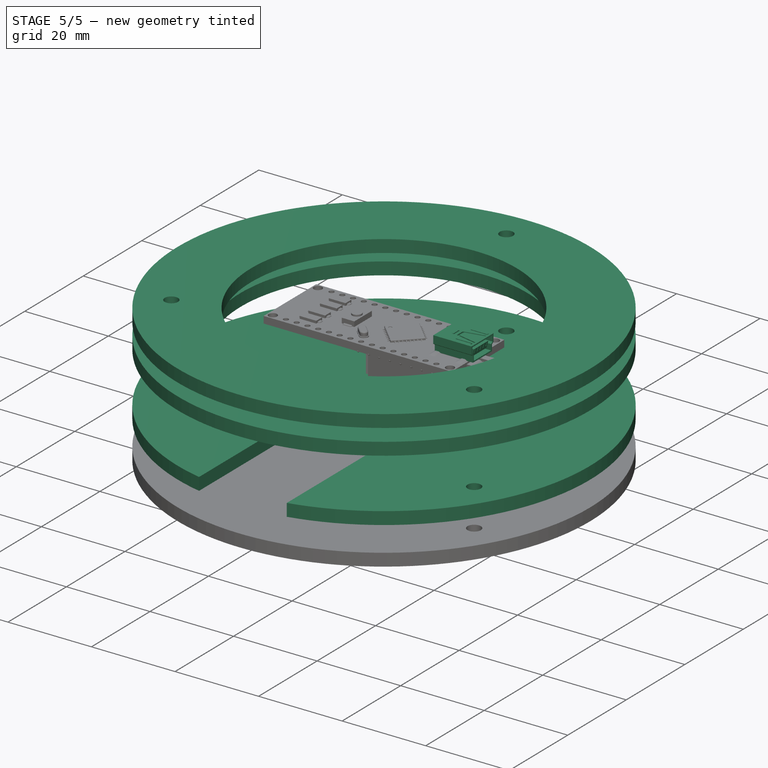
[diagram: stage 5 of 5 — iso view after this stage's code; geometry added in this stage tinted green]
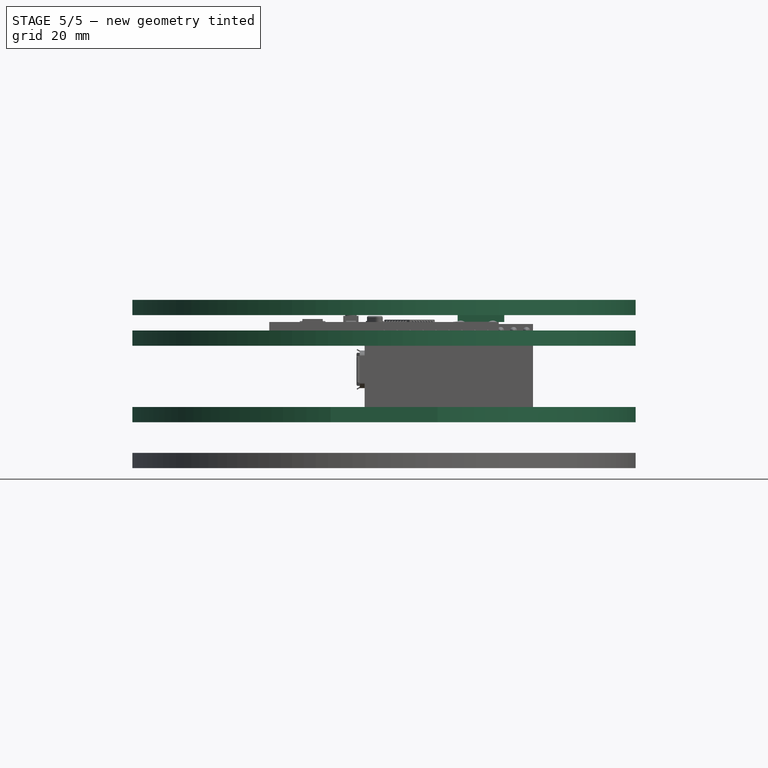
[diagram: stage 5 of 5 — front view after this stage's code; geometry added in this stage tinted green]
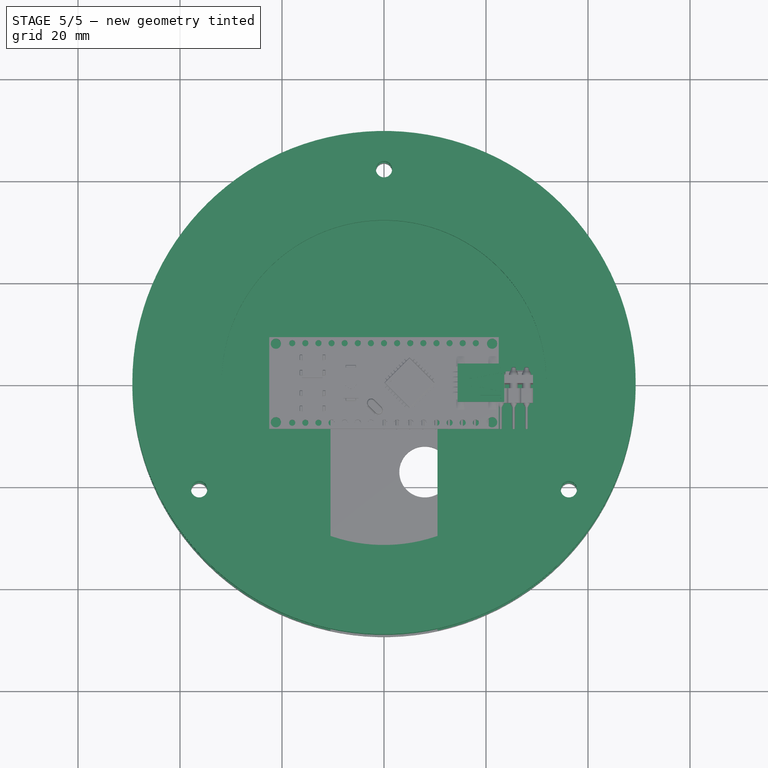
[diagram: stage 5 of 5 — top view after this stage's code; geometry added in this stage tinted green]
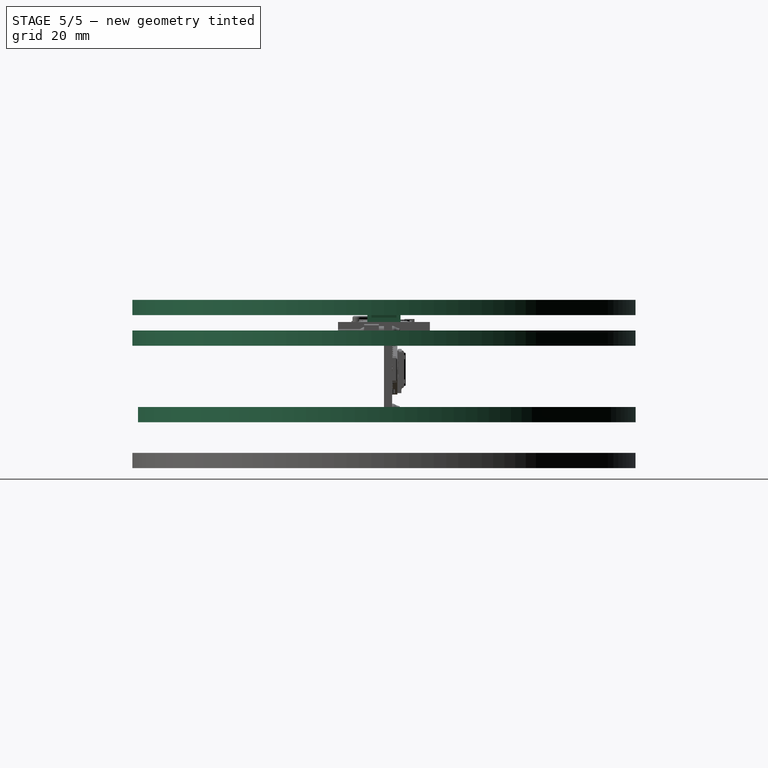
[diagram: stage 5 of 5 — right view after this stage's code; geometry added in this stage tinted green]
FEATURE [PartDesign::Body] Body001  label="spacer01"
  Group = -> [Binder,Sketch001,Pad001]
  Origin = -> Origin001
  Tip = -> Pad001
FEATURE [PartDesign::SubShapeBinder] Binder001
  BindMode = 0
  ClaimChildren = false
  Context = -> Body002 [Binder001.]
  Fuse = false
  MakeFace = true
  PartialLoad = false
  Relative = true
  Support = -> [Body]
  _Version = 2
FEATURE [PartDesign::SubShapeBinder] Binder002
  BindMode = 0
  ClaimChildren = false
  Context = -> Body002 [Binder002.]
  Fuse = false
  MakeFace = true
  PartialLoad = false
  Relative = true
  Support = -> [Body001]
  _Version = 2
FEATURE [Sketcher::SketchObject] Sketch002
  ExternalGeometry = -> [Binder001,Binder002]
  FullyConstrained = true
  MapMode = 5
  Placement = pos=(0,0,3) rot=(0,0,1;0rad)
  Support = -> [Binder001]
  expr: Constraints[9] = Spreadsheet.length_of_LEDS / 3.14
  sketch-geometry (5):
    g0: Circle CenterX=0 CenterY=0 CenterZ=0 NormalX=0 NormalY=0 NormalZ=1 AngleXU=0 Radius=49.3471
    g1: Circle CenterX=0 CenterY=0 CenterZ=0 NormalX=0 NormalY=0 NormalZ=1 AngleXU=0 Radius=31.8471
    g2: Circle CenterX=-36.2407 CenterY=-20.9236 CenterZ=0 NormalX=0 NormalY=0 NormalZ=1 AngleXU=0 Radius=1.6
    g3: Circle CenterX=0 CenterY=41.8471 CenterZ=0 NormalX=0 NormalY=0 NormalZ=1 AngleXU=0 Radius=1.6
    g4: Circle CenterX=36.2407 CenterY=-20.9236 CenterZ=0 NormalX=0 NormalY=0 NormalZ=1 AngleXU=0 Radius=1.6
  constraints (10):
    c: Coincident(g0,g-1)
    c: Coincident(g1,g0)
    c: Coincident(g2,g-6)
    c: Coincident(g3,g-4)
    c: Coincident(g4,g-5)
    c: Equal(g-5,g4)
    c: Equal(g2,g-6)
    c: Equal(g-4,g3)
    c: Equal(g0,g-3)
    c: Diameter(g1) = 63.6943
FEATURE [PartDesign::Pad] Pad002
  Direction = (1,1,1)
  Length = 3
  Length2 = 100
  Profile = -> Sketch002
  Type = 0
FEATURE [PartDesign::Body] Body002  label="bezel"
  Group = -> [Binder001,Sketch002,Binder002,Pad002]
  Origin = -> Origin002
  Tip = -> Pad002
FEATURE [PartDesign::FeatureBase] Clone
  BaseFeature = -> Body001
FEATURE [PartDesign::Body] Body006  label="arduino_micro_back001"
  Group = -> [Binder004,Sketch004,Pad004]
  Origin = -> Origin006
  Tip = -> Pad004
FEATURE [Part::Part2DObjectPython] Shape2DView  label="mirror"  # Draft 2D object (typed FeaturePython)
  Base = -> Body
  FuseArch = false
  HiddenLines = false
  InPlace = true
  Projection = (0,8.74228e-08,-1)
  ProjectionMode = 0
  SegmentLength = 0.05
  Tessellation = false
  VisibleOnly = false
FEATURE [Part::Part2DObjectPython] Shape2DView001  label="spacer"  # Draft 2D object (typed FeaturePython)
  Base = -> Body001
  FuseArch = false
  HiddenLines = false
  InPlace = true
  Projection = (0,8.74228e-08,-1)
  ProjectionMode = 0
  SegmentLength = 0.05
  Tessellation = false
  VisibleOnly = false
FEATURE [Part::Part2DObjectPython] Shape2DView002  label="bezel001"  # Draft 2D object (typed FeaturePython)
  Base = -> Body002
  FuseArch = false
  HiddenLines = false
  InPlace = true
  Projection = (0,8.74228e-08,-1)
  ProjectionMode = 0
  SegmentLength = 0.05
  Tessellation = false
  VisibleOnly = false
FEATURE [Part::Part2DObjectPython] Shape2DView004  label="arduino_micro_back"  # Draft 2D object (typed FeaturePython)
  Base = -> Body006
  FuseArch = false
  HiddenLines = false
  InPlace = true
  Projection = (0,8.74228e-08,-1)
  ProjectionMode = 0
  SegmentLength = 0.05
  Tessellation = false
  VisibleOnly = false
FEATURE [Part::Feature] Solid  label="USB"
  shape: bbox 10.19 x 3.794 x 11.03 mm, 123 faces (baked)
FEATURE [Part::Compound2] Compound  label="USB:1"
  Links = -> [Solid]
  Placement = pos=(-21.525,-8.95,1.65) rot=(-1,0,0;1.5708rad)
FEATURE [Part::Feature] Solid001  label="Component2"
  shape: bbox 3.497 x 3.497 x 0.2 mm, 22 faces (baked)
FEATURE [Part::Compound2] Compound001  label="Component2:1"
  Links = -> [Solid001]
FEATURE [Part::Feature] Solid002  label="Component3"
  shape: bbox 0.3 x 0.9 x 0.6 mm, 11 faces (baked)
FEATURE [Part::Compound2] Compound002  label="Component3:1"
  Links = -> [Solid002]
FEATURE [App::Link] Link  label="Component3:2"
  LinkPlacement = pos=(0.98,0,0) rot=(0,0,1;0rad)
  LinkedObject = -> Solid002
  Placement = pos=(0.98,0,0) rot=(0,0,1;0rad)
FEATURE [App::Link] Link001  label="Component3:3"
  LinkPlacement = pos=(1.96,0,0) rot=(0,0,1;0rad)
  LinkedObject = -> Solid002
  Placement = pos=(1.96,0,0) rot=(0,0,1;0rad)
FEATURE [App::Link] Link002  label="Component3:4"
  LinkPlacement = pos=(2.94,0,0) rot=(0,0,1;0rad)
  LinkedObject = -> Solid002
  Placement = pos=(2.94,0,0) rot=(0,0,1;0rad)
FEATURE [App::Link] Link003  label="Component3:5"
  LinkPlacement = pos=(3.92,0,0) rot=(0,0,1;0rad)
  LinkedObject = -> Solid002
  Placement = pos=(3.92,0,0) rot=(0,0,1;0rad)
FEATURE [App::Link] Link004  label="Component3:6"
  LinkPlacement = pos=(4.9,0,0) rot=(0,0,1;0rad)
  LinkedObject = -> Solid002
  Placement = pos=(4.9,0,0) rot=(0,0,1;0rad)
FEATURE [App::Link] Link005  label="Component3:7"
  LinkPlacement = pos=(5.88,0,0) rot=(0,0,1;0rad)
  LinkedObject = -> Solid002
  Placement = pos=(5.88,0,0) rot=(0,0,1;0rad)
FEATURE [App::Link] Link006  label="Component3:8"
  LinkPlacement = pos=(6.86,0,0) rot=(0,0,1;0rad)
  LinkedObject = -> Solid002
  Placement = pos=(6.86,0,0) rot=(0,0,1;0rad)
FEATURE [App::Link] Link007  label="Component3:9"
  LinkPlacement = pos=(7.84,0,0) rot=(0,0,1;0rad)
  LinkedObject = -> Solid002
  Placement = pos=(7.84,0,0) rot=(0,0,1;0rad)
FEATURE [App::Link] Link008  label="Component3:10"
  LinkPlacement = pos=(8.82,0,0) rot=(0,0,1;0rad)
  LinkedObject = -> Solid002
  Placement = pos=(8.82,0,0) rot=(0,0,1;0rad)
FEATURE [App::Link] Link009  label="Component3:11"
  LinkPlacement = pos=(9.8,0,0) rot=(0,0,1;0rad)
  LinkedObject = -> Solid002
  Placement = pos=(9.8,0,0) rot=(0,0,1;0rad)
FEATURE [App::Link] Link010  label="Component3:12"
  LinkPlacement = pos=(10.78,0,0) rot=(0,0,1;0rad)
  LinkedObject = -> Solid002
  Placement = pos=(10.78,0,0) rot=(0,0,1;0rad)
FEATURE [App::Link] Link011  label="Component3:13"
  LinkPlacement = pos=(11.76,0,0) rot=(0,0,1;0rad)
  LinkedObject = -> Solid002
  Placement = pos=(11.76,0,0) rot=(0,0,1;0rad)
FEATURE [App::Link] Link012  label="Component3:14"
  LinkPlacement = pos=(12.74,0,0) rot=(0,0,1;0rad)
  LinkedObject = -> Solid002
  Placement = pos=(12.74,0,0) rot=(0,0,1;0rad)
FEATURE [App::Link] Link013  label="Component3:15"
  LinkPlacement = pos=(13.72,0,0) rot=(0,0,1;0rad)
  LinkedObject = -> Solid002
  Placement = pos=(13.72,0,0) rot=(0,0,1;0rad)
FEATURE [App::Link] Link014  label="Component3:16"
  LinkPlacement = pos=(14.7,0,0) rot=(0,0,1;0rad)
  LinkedObject = -> Solid002
  Placement = pos=(14.7,0,0) rot=(0,0,1;0rad)
FEATURE [Part::Feature] Solid003  label="Component3(Mirror)"
  shape: bbox 0.3 x 0.9 x 0.6 mm, 11 faces (baked)
FEATURE [Part::Compound2] Compound003  label="Component3(Mirror):1"
  Links = -> [Solid003]
  Placement = pos=(0,0,0) rot=(1,0,0;3.14159rad)
FEATURE [App::Link] Link015  label="Component3(Mirror):2"
  LinkPlacement = pos=(0.98,0,0) rot=(1,0,0;3.14159rad)
  LinkedObject = -> Solid003
  Placement = pos=(0.98,0,0) rot=(1,0,0;3.14159rad)
FEATURE [App::Link] Link016  label="Component3(Mirror):3"
  LinkPlacement = pos=(1.96,0,0) rot=(1,0,0;3.14159rad)
  LinkedObject = -> Solid003
  Placement = pos=(1.96,0,0) rot=(1,0,0;3.14159rad)
FEATURE [App::Link] Link017  label="Component3(Mirror):4"
  LinkPlacement = pos=(2.94,0,0) rot=(1,0,0;3.14159rad)
  LinkedObject = -> Solid003
  Placement = pos=(2.94,0,0) rot=(1,0,0;3.14159rad)
FEATURE [App::Link] Link018  label="Component3(Mirror):5"
  LinkPlacement = pos=(3.92,0,0) rot=(1,0,0;3.14159rad)
  LinkedObject = -> Solid003
  Placement = pos=(3.92,0,0) rot=(1,0,0;3.14159rad)
FEATURE [App::Link] Link019  label="Component3(Mirror):6"
  LinkPlacement = pos=(4.9,0,0) rot=(1,0,0;3.14159rad)
  LinkedObject = -> Solid003
  Placement = pos=(4.9,0,0) rot=(1,0,0;3.14159rad)
FEATURE [App::Link] Link020  label="Component3(Mirror):7"
  LinkPlacement = pos=(5.88,0,0) rot=(1,0,0;3.14159rad)
  LinkedObject = -> Solid003
  Placement = pos=(5.88,0,0) rot=(1,0,0;3.14159rad)
FEATURE [App::Link] Link021  label="Component3(Mirror):8"
  LinkPlacement = pos=(6.86,0,0) rot=(1,0,0;3.14159rad)
  LinkedObject = -> Solid003
  Placement = pos=(6.86,0,0) rot=(1,0,0;3.14159rad)
FEATURE [App::Link] Link022  label="Component3(Mirror):9"
  LinkPlacement = pos=(7.84,0,0) rot=(1,0,0;3.14159rad)
  LinkedObject = -> Solid003
  Placement = pos=(7.84,0,0) rot=(1,0,0;3.14159rad)
FEATURE [App::Link] Link023  label="Component3(Mirror):10"
  LinkPlacement = pos=(8.82,0,0) rot=(1,0,0;3.14159rad)
  LinkedObject = -> Solid003
  Placement = pos=(8.82,0,0) rot=(1,0,0;3.14159rad)
FEATURE [App::Link] Link024  label="Component3(Mirror):11"
  LinkPlacement = pos=(9.8,0,0) rot=(1,0,0;3.14159rad)
  LinkedObject = -> Solid003
  Placement = pos=(9.8,0,0) rot=(1,0,0;3.14159rad)
FEATURE [App::Link] Link025  label="Component3(Mirror):12"
  LinkPlacement = pos=(10.78,0,0) rot=(1,0,0;3.14159rad)
  LinkedObject = -> Solid003
  Placement = pos=(10.78,0,0) rot=(1,0,0;3.14159rad)
FEATURE [App::Link] Link026  label="Component3(Mirror):13"
  LinkPlacement = pos=(11.76,0,0) rot=(1,0,0;3.14159rad)
  LinkedObject = -> Solid003
  Placement = pos=(11.76,0,0) rot=(1,0,0;3.14159rad)
FEATURE [App::Link] Link027  label="Component3(Mirror):14"
  LinkPlacement = pos=(12.74,0,0) rot=(1,0,0;3.14159rad)
  LinkedObject = -> Solid003
  Placement = pos=(12.74,0,0) rot=(1,0,0;3.14159rad)
FEATURE [App::Link] Link028  label="Component3(Mirror):15"
  LinkPlacement = pos=(13.72,0,0) rot=(1,0,0;3.14159rad)
  LinkedObject = -> Solid003
  Placement = pos=(13.72,0,0) rot=(1,0,0;3.14159rad)
FEATURE [App::Link] Link029  label="Component3(Mirror):16"
  LinkPlacement = pos=(14.7,0,0) rot=(1,0,0;3.14159rad)
  LinkedObject = -> Solid003
  Placement = pos=(14.7,0,0) rot=(1,0,0;3.14159rad)
FEATURE [Part::Feature] Solid004  label="Component5"
  shape: bbox 0.7 x 0.2 x 0.5 mm, 10 faces (baked)
FEATURE [Part::Compound2] Compound004  label="Component5:2"
  Links = -> [Solid004]
  Placement = pos=(0,-0.76,0) rot=(0,0,1;0rad)
FEATURE [App::Link] Link030  label="Component5:3"
  LinkPlacement = pos=(0,-1.52,0) rot=(0,0,1;0rad)
  LinkedObject = -> Solid004
  Placement = pos=(0,-1.52,0) rot=(0,0,1;0rad)
FEATURE [App::Link] Link031  label="Component5:4"
  LinkPlacement = pos=(0,-2.28,0) rot=(0,0,1;0rad)
  LinkedObject = -> Solid004
  Placement = pos=(0,-2.28,0) rot=(0,0,1;0rad)
FEATURE [App::Link] Link032  label="Component5:5"
  LinkPlacement = pos=(0,-3.04,0) rot=(0,0,1;0rad)
  LinkedObject = -> Solid004
  Placement = pos=(0,-3.04,0) rot=(0,0,1;0rad)
FEATURE [Part::Feature] Solid005  label="Component5(Mirror)"
  shape: bbox 0.7 x 0.2 x 0.5 mm, 10 faces (baked)
FEATURE [Part::Compound2] Compound005  label="Component5(Mirror):1"
  Links = -> [Solid005]
  Placement = pos=(0,0.76,0) rot=(1,0,0;3.14159rad)
FEATURE [App::Link] Link068  label="NAUO26"
  LinkPlacement = pos=(24.384,1.62,-11.938) rot=(0,0,1;0rad)
  LinkedObject = -> Compound032
  Placement = pos=(24.384,1.62,-11.938) rot=(0,0,1;0rad)
FEATURE [App::Link] Link069  label="NAUO27"
  LinkPlacement = pos=(4.1046,1.62,-3.81) rot=(0,1,0;1.5708rad)
  LinkedObject = -> Compound032
  Placement = pos=(4.1046,1.62,-3.81) rot=(0,1,0;1.5708rad)
FEATURE [App::LinkGroup] LinkGroup003  label="ARDUINO PRO MICRO"
  ElementList = -> [Compound009,Compound012,Compound016,Compound017,Compound018,Link058,Link059,Compound019,Compound020,Compound022,Compound024,Compound026,Link060,Compound027,Compound029,Link061,Compound030,Link062,Link063,Link064,Link065,Link066,Link067,Compound031,Compound033,Link068,Link069]
  LinkMode = 0
  Placement = pos=(-7.70499,-49.815,-12.5199) rot=(-0.57735,-0.57735,0.57735;2.0944rad)
FEATURE [Spreadsheet::Sheet] Spreadsheet
  cells = B1=Enter board size values here manually; C1=Micro_Pro; D1=Nano; E1=ESP8266 NodeMCU; F1=Add more boards; A2=Length of the microcontroller board - choose from list (and add more as required); B2(Length)==47mm; C2==34mm; D2==47mm; E2==48mm; A3=Width of the microcontroller board; B3(width)==21mm; C3==21mm; D3==21mm; E3==26mm; A4=Length of LED strip; B4(length_of_LEDS)==200mm; C4=Determines the inner diameter of the infinity mirror. Adds 5mm excess to take care of wiring; A5=Screw hole diameter; B5(screw_hole_dia)==3mm; C5=Adds 0.2mm to screw hole diameter
FEATURE [PartDesign::FeatureBase] Clone002
  BaseFeature = -> Body006
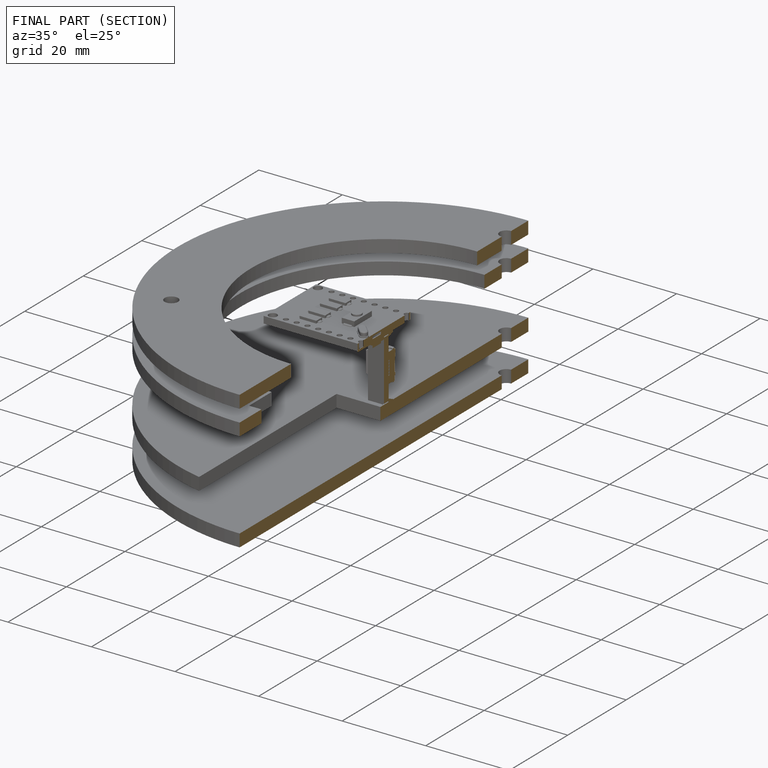
[diagram: finished part — half-section view (interior)]
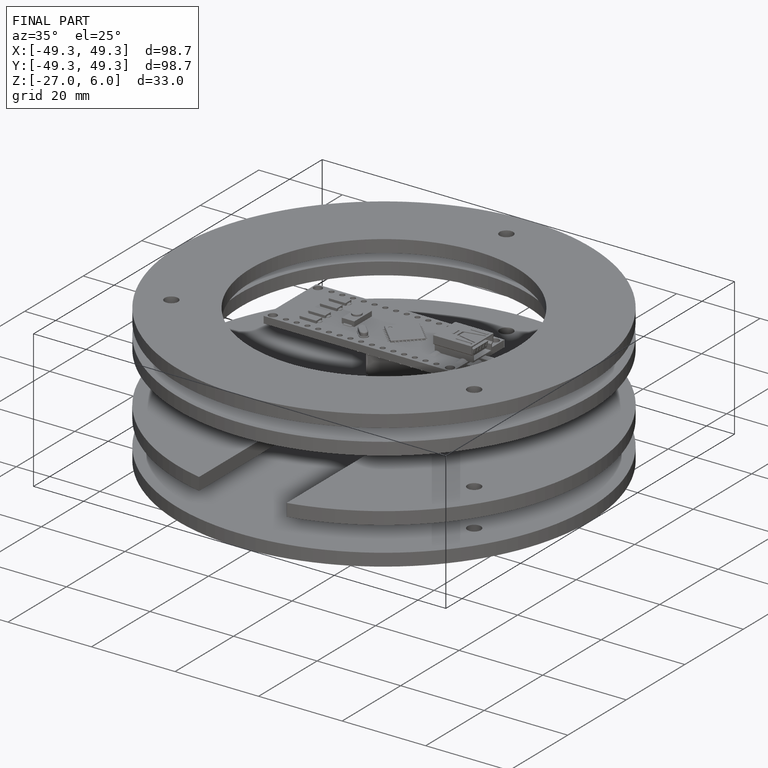
[diagram: finished part — iso view with bounding-box wireframe]
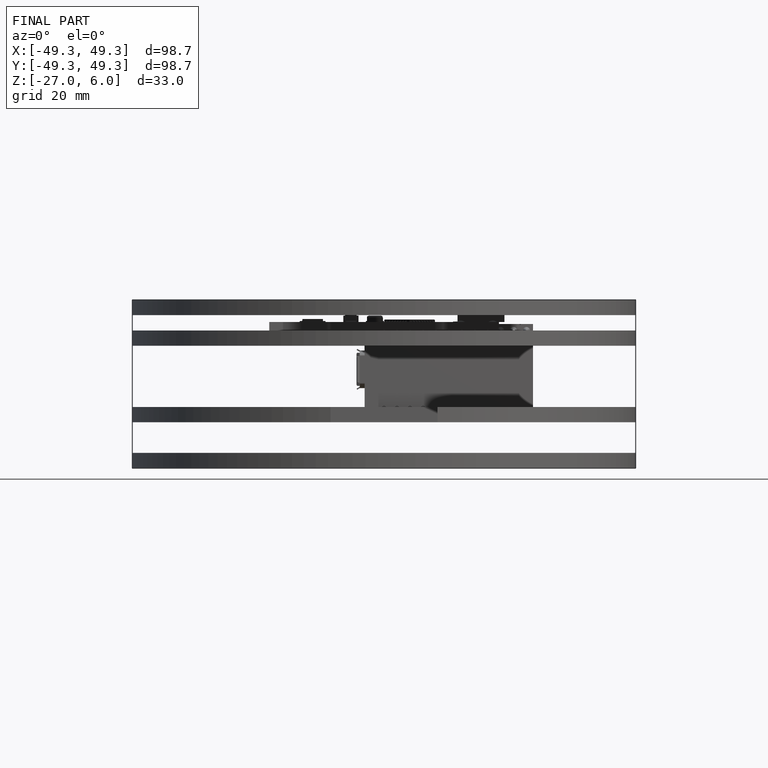
[diagram: finished part — front view with bounding-box wireframe]
